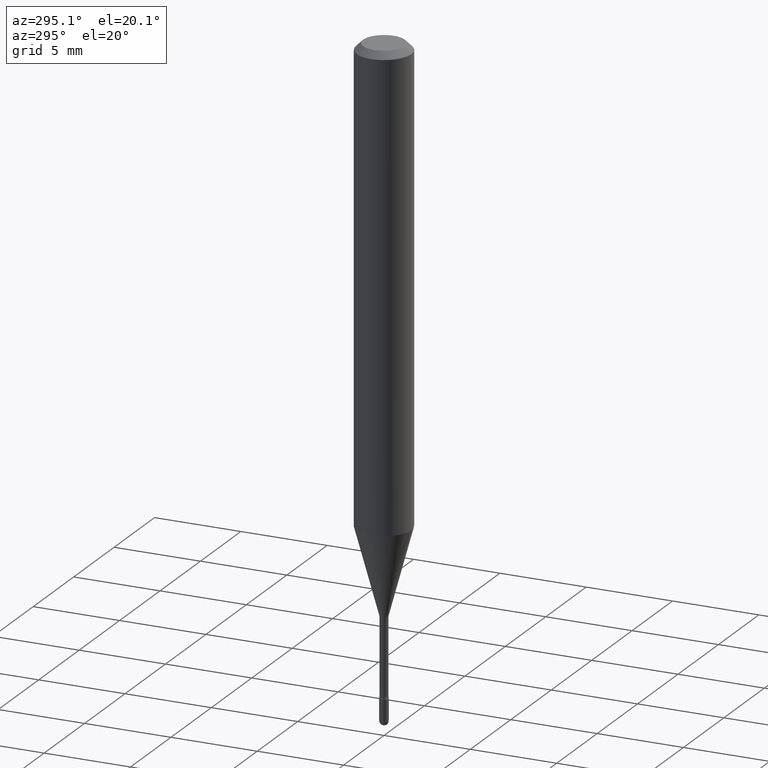
[diagram: clean part render]
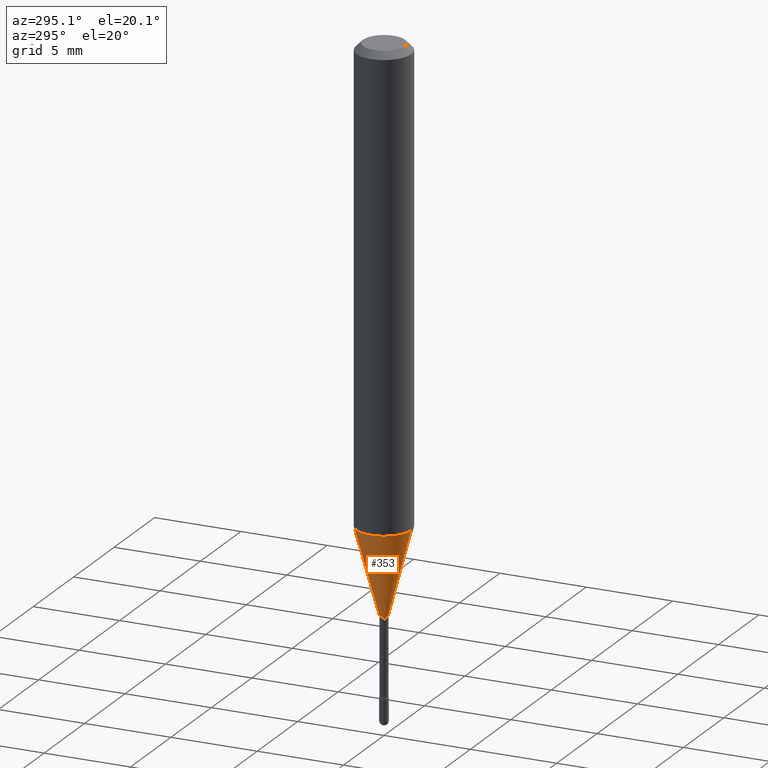
[diagram: same view with one face highlighted and labeled with its STEP entity id]
A machine part, auxiliary view. The second image highlights one B-rep face of the part: STEP entity #353.
In plain terms, the highlighted conical surface has half-angle 15 deg.
Its self-contained STEP definition (entity closure, byte-faithful):
#14 = DIRECTION ( 'NONE',  ( -6.982962677686264344E-15, -1.000000000000000000, 0.000000000000000000 ) ) ;
#31 = CARTESIAN_POINT ( 'NONE',  ( 7.042269065257977501E-17, 0.009911112605659591623, -1.258092501787273276 ) ) ;
#51 = DIRECTION ( 'NONE',  ( -6.982962677686265922E-15, -1.000000000000000000, 4.370956789862821150E-15 ) ) ;
#54 = EDGE_CURVE ( 'NONE', #560, #269, #368, .T. ) ;
#70 = CARTESIAN_POINT ( 'NONE',  ( 3.076513477913008046E-29, -4.392767585331877951E-15, -1.258092501787273276 ) ) ;
#85 = AXIS2_PLACEMENT_3D ( 'NONE', #378, #479, #51 ) ;
#86 = CONICAL_SURFACE ( 'NONE', #400, 0.009911112605663983943, 0.2617993877991496854 ) ;
#119 = DIRECTION ( 'NONE',  ( -6.982962677686264344E-15, -1.000000000000000000, 0.000000000000000000 ) ) ;
#124 = EDGE_LOOP ( 'NONE', ( #322, #176, #530, #491 ) ) ;
#146 = VECTOR ( 'NONE', #252, 39.37007874015748854 ) ;
#170 = FACE_OUTER_BOUND ( 'NONE', #124, .T. ) ;
#171 = CARTESIAN_POINT ( 'NONE',  ( -6.920892941966669973E-17, -0.009911112605668376263, -1.258092501787273276 ) ) ;
#176 = ORIENTED_EDGE ( 'NONE', *, *, #318, .T. ) ;
#199 = VERTEX_POINT ( 'NONE', #524 ) ;
#213 = EDGE_CURVE ( 'NONE', #469, #269, #468, .T. ) ;
#218 = AXIS2_PLACEMENT_3D ( 'NONE', #389, #221, #14 ) ;
#221 = DIRECTION ( 'NONE',  ( -2.445379392645967337E-29, 3.491609384120338901E-15, 1.000000000000000000 ) ) ;
#232 = CARTESIAN_POINT ( 'NONE',  ( -6.920892941966669973E-17, -0.009911112605668376263, -1.258092501787273276 ) ) ;
#252 = DIRECTION ( 'NONE',  ( -1.807323732225326195E-15, -0.2588190451025176309, 0.9659258262890690894 ) ) ;
#269 = VERTEX_POINT ( 'NONE', #557 ) ;
#318 = EDGE_CURVE ( 'NONE', #199, #469, #554, .T. ) ;
#319 = LINE ( 'NONE', #31, #473 ) ;
#322 = ORIENTED_EDGE ( 'NONE', *, *, #540, .F. ) ;
#353 = ADVANCED_FACE ( 'NONE', ( #170 ), #86, .T. ) ;
#368 = CIRCLE ( 'NONE', #85, 0.06250000000000000000 ) ;
#378 = CARTESIAN_POINT ( 'NONE',  ( 2.596572559451962557E-29, -3.707488965678223173E-15, -1.061828102118093087 ) ) ;
#389 = CARTESIAN_POINT ( 'NONE',  ( 3.076513477913008046E-29, -4.392767585331877951E-15, -1.258092501787273276 ) ) ;
#400 = AXIS2_PLACEMENT_3D ( 'NONE', #70, #413, #119 ) ;
#413 = DIRECTION ( 'NONE',  ( -2.445379392645967337E-29, 3.491609384120338901E-15, 1.000000000000000000 ) ) ;
#468 = LINE ( 'NONE', #171, #146 ) ;
#469 = VERTEX_POINT ( 'NONE', #232 ) ;
#473 = VECTOR ( 'NONE', #542, 39.37007874015748143 ) ;
#479 = DIRECTION ( 'NONE',  ( -2.445379392645967337E-29, 3.491609384120338901E-15, 1.000000000000000000 ) ) ;
#491 = ORIENTED_EDGE ( 'NONE', *, *, #54, .F. ) ;
#524 = CARTESIAN_POINT ( 'NONE',  ( 2.572559502513342919E-16, 0.009911112605659591623, -1.258092501787273276 ) ) ;
#530 = ORIENTED_EDGE ( 'NONE', *, *, #213, .T. ) ;
#540 = EDGE_CURVE ( 'NONE', #199, #560, #319, .T. ) ;
#542 = DIRECTION ( 'NONE',  ( 1.839019923739596371E-15, 0.2588190451025244032, 0.9659258262890673130 ) ) ;
#545 = CARTESIAN_POINT ( 'NONE',  ( 4.440892098500884514E-16, 0.06249999999999629463, -1.061828102118093309 ) ) ;
#554 = CIRCLE ( 'NONE', #218, 0.009911112605663983943 ) ;
#557 = CARTESIAN_POINT ( 'NONE',  ( -4.364351673553657356E-16, -0.06250000000000371925, -1.061828102118092865 ) ) ;
#560 = VERTEX_POINT ( 'NONE', #545 ) ;